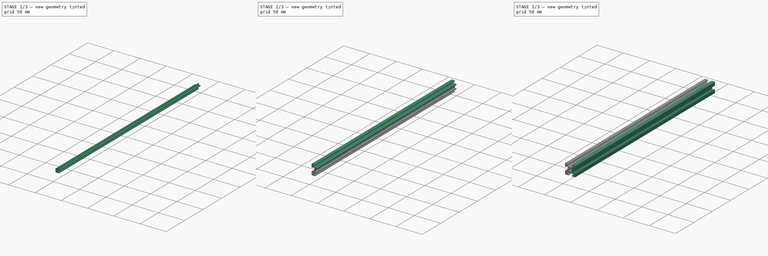
[diagram: build sequence overview — one tinted view per stage of 3, left to right]
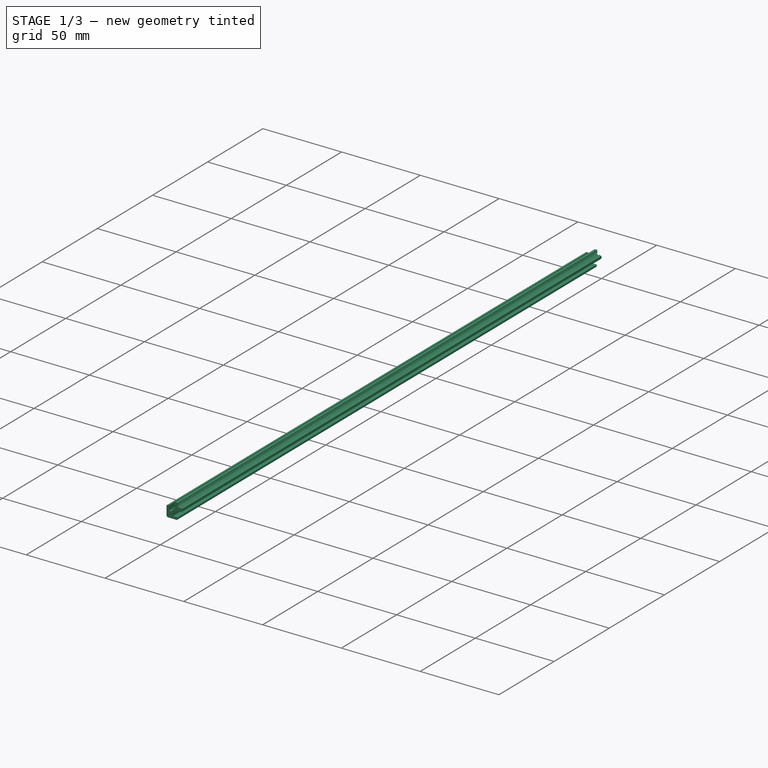
[diagram: stage 1 of 3 — iso view after this stage's code; geometry added in this stage tinted green]
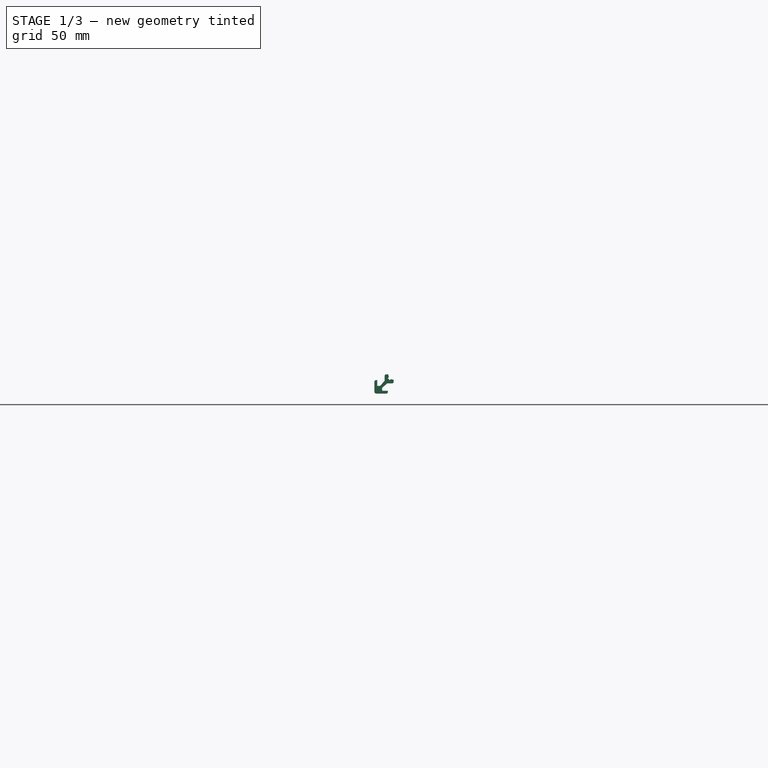
[diagram: stage 1 of 3 — front view after this stage's code; geometry added in this stage tinted green]
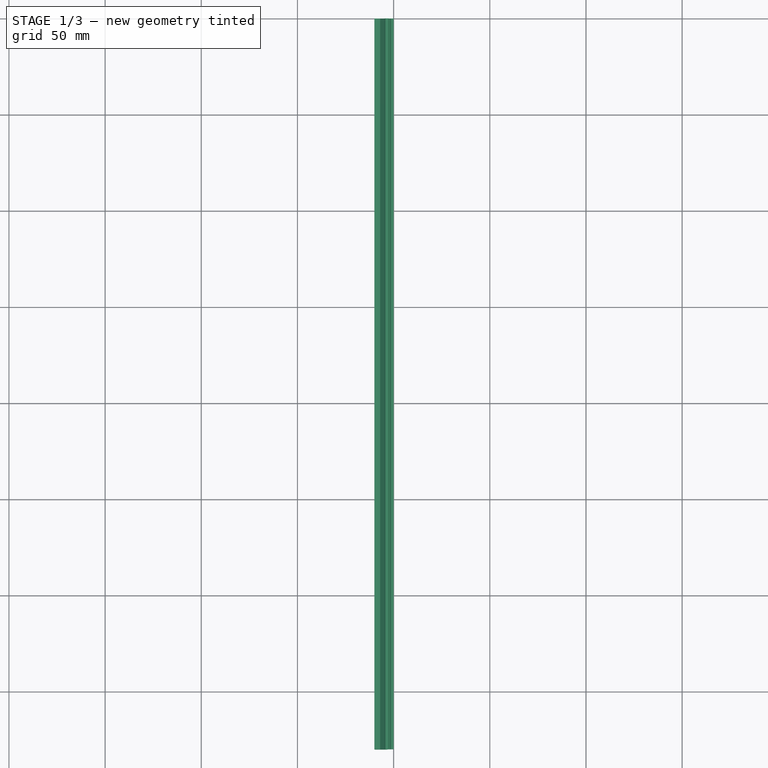
[diagram: stage 1 of 3 — top view after this stage's code; geometry added in this stage tinted green]
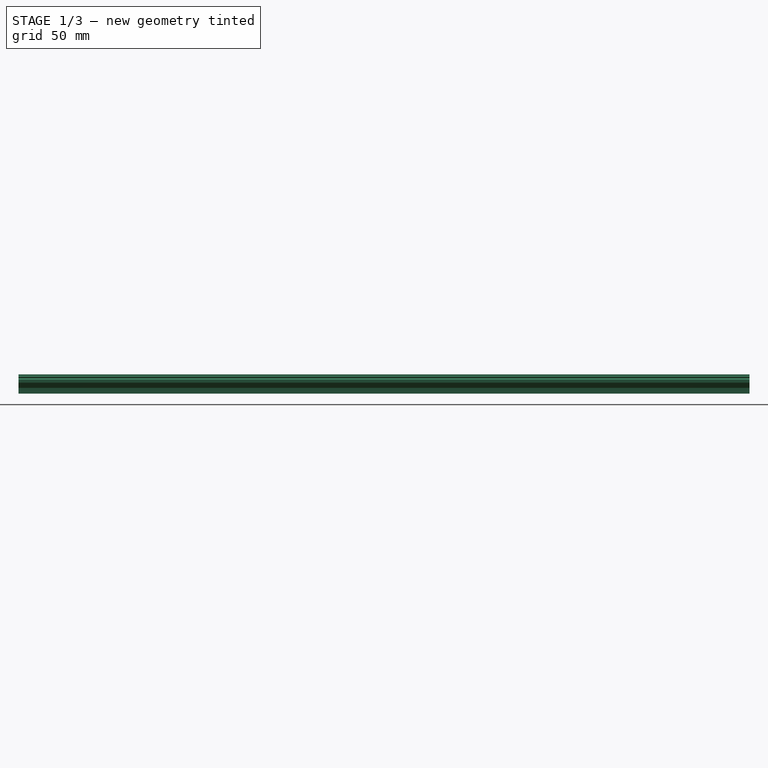
[diagram: stage 1 of 3 — right view after this stage's code; geometry added in this stage tinted green]
FCSTD DOCUMENT  (FreeCAD 0.20R)
Label: Profile-20x20-B-Type_Slot6_A
License: All rights reserved
LicenseURL: http://en.wikipedia.org/wiki/All_rights_reserved
objects: Part::Mirroring×2, Part::MultiFuse×2, Sketcher::SketchObject×1, PartDesign::Pad×1, PartDesign::Body×1
note: 8 computed .brp shape members not serialized (recipe doc carries the construction recipe); baked Part::Feature solids carry a one-line shape summary decoded from their .brp

FEATURE [Sketcher::SketchObject] Sketch
  FullyConstrained = true
  MapMode = 5
  Placement = pos=(0,0,0) rot=(1,0,0;1.5708rad)
  Support = -> [XZ_Plane]
  sketch-geometry (28):
    g0: LineSegment StartX=-10 StartY=3.4 StartZ=0 EndX=-10 EndY=9 EndZ=0
    g1: LineSegment StartX=-9 StartY=10 StartZ=0 EndX=-3.4 EndY=10 EndZ=0
    g2: ArcOfCircle CenterX=-9 CenterY=9 CenterZ=0 NormalX=0 NormalY=0 NormalZ=1 AngleXU=0 Radius=1 StartAngle=1.5708 EndAngle=3.14159
    g3: LineSegment StartX=0 StartY=0 StartZ=0 EndX=-9 EndY=9 EndZ=0
    g4: ArcOfCircle CenterX=0 CenterY=0 CenterZ=0 NormalX=0 NormalY=0 NormalZ=1 AngleXU=0 Radius=2.75 StartAngle=1.5708 EndAngle=2.07997
    g5: LineSegment StartX=-2.40116 StartY=1.3405 StartZ=0 EndX=-3.0052 EndY=1.94454 EndZ=0
    g6: LineSegment StartX=-3.0052 StartY=1.94454 StartZ=0 EndX=-2.47487 EndY=2.47487 EndZ=0
    g7: LineSegment StartX=-1.94454 StartY=3.0052 StartZ=0 EndX=-1.3405 EndY=2.40116 EndZ=0
    g8: LineSegment StartX=-2.47487 StartY=2.47487 StartZ=0 EndX=-1.94454 EndY=3.0052 EndZ=0
    g9: ArcOfCircle CenterX=0 CenterY=0 CenterZ=0 NormalX=0 NormalY=0 NormalZ=1 AngleXU=0 Radius=2.75 StartAngle=2.63242 EndAngle=3.14159
    g10: LineSegment StartX=-3.4 StartY=10 StartZ=0 EndX=-3.4 EndY=9.6 EndZ=0
    g11: LineSegment StartX=-3.4 StartY=9.6 StartZ=0 EndX=-3 EndY=9.6 EndZ=0
    g12: LineSegment StartX=-3 StartY=9.6 StartZ=0 EndX=-3 EndY=8.5 EndZ=0
    g13: LineSegment StartX=-10 StartY=3.4 StartZ=0 EndX=-9.6 EndY=3.4 EndZ=0
    g14: LineSegment StartX=-9.6 StartY=3.4 StartZ=0 EndX=-9.6 EndY=3 EndZ=0
    g15: LineSegment StartX=-9.6 StartY=3 StartZ=0 EndX=-8.5 EndY=3 EndZ=0
    g16: LineSegment StartX=-3 StartY=8.5 StartZ=0 EndX=-6 EndY=8.5 EndZ=0
    g17: LineSegment StartX=-8.5 StartY=3 StartZ=0 EndX=-8.5 EndY=6 EndZ=0
    g18: LineSegment StartX=-8.5 StartY=6 StartZ=0 EndX=-7 EndY=6 EndZ=0
    g19: LineSegment StartX=-6 StartY=8.5 StartZ=0 EndX=-6 EndY=7 EndZ=0
    g20: LineSegment StartX=-0.65 StartY=4.7 StartZ=0 EndX=0 EndY=4.3 EndZ=0
    g21: LineSegment StartX=2e-16 StartY=2.75 StartZ=0 EndX=0 EndY=4.3 EndZ=0
    g22: LineSegment StartX=-2.75 StartY=3e-16 StartZ=0 EndX=-4.3 EndY=3e-16 EndZ=0
    g23: LineSegment StartX=-4.3 StartY=3e-16 StartZ=0 EndX=-4.7 EndY=0.65 EndZ=0
    g24: LineSegment StartX=-0.65 StartY=4.7 StartZ=0 EndX=-3.35 EndY=4.7 EndZ=0
    g25: LineSegment StartX=-4.7 StartY=0.65 StartZ=0 EndX=-4.7 EndY=3.35 EndZ=0
    g26: LineSegment StartX=-4.7 StartY=3.35 StartZ=0 EndX=-7 EndY=6 EndZ=0
    g27: LineSegment StartX=-3.35 StartY=4.7 StartZ=0 EndX=-6 EndY=7 EndZ=0
  constraints (84):
    c: Vertical(g0)
    c: Horizontal(g1)
    c: Tangent(g0,g2) = 1.5708
    c: Tangent(g1,g2) = 1.5708
    c: Radius(g2) = 1
    c: Coincident(g3,g-1)
    c: Coincident(g3,g2)
    c: Coincident(g4,g3)
    c: PointOnObject(g4,g-2)
    c: PointOnObject(g9,g-1)
    c: Radius(g4) = 2.75
    c: Coincident(g6,g5)
    c: Perpendicular(g6,g3)
    c: Parallel(g5,g3)
    c: Parallel(g3,g7)
    c: Coincident(g8,g6)
    c: Coincident(g7,g8)
    c: Perpendicular(g3,g8)
    c: Equal(g6,g8)
    c: PointOnObject(g6,g3)
    c: Equal(g5,g7)
    c: Distance(g6,g4) = 3.5
    c: Distance(g8) = 0.75
    c: PointOnObject(g5,g4)
    c: Equal(g4,g9)
    c: PointOnObject(g4,g7)
    c: Coincident(g4,g9)
    c: PointOnObject(g9,g5)
    c: Vertical(g10)
    c: Coincident(g10,g11)
    c: Horizontal(g11)
    c: Coincident(g11,g12)
    c: Vertical(g12)
    c: DistanceY(g10,g10) = 0.4
    c: DistanceX(g11,g11) = 0.4
    c: DistanceY(g12,g12) = 1.1
    c: Coincident(g1,g10)
    c: Horizontal(g13)
    c: Coincident(g13,g14)
    c: Vertical(g14)
    c: Coincident(g14,g15)
    c: Horizontal(g15)
    c: DistanceX(g13,g13) = 0.4
    c: DistanceY(g14,g14) = -0.4
    c: DistanceX(g15,g15) = 1.1
    c: DistanceX(g11,g4) = 3
    c: DistanceY(g4,g14) = 3
    c: Coincident(g0,g13)
    c: Coincident(g16,g12)
    c: Horizontal(g16)
    c: Coincident(g17,g15)
    c: Vertical(g17)
    c: DistanceX(g16,g16) = 3
    c: DistanceY(g17,g17) = 3
    c: Coincident(g18,g17)
    c: Horizontal(g18)
    c: Coincident(g19,g16)
    c: Vertical(g19)
    c: DistanceY(g19,g19) = 1.5
    c: DistanceX(g18,g18) = 1.5
    c: Angle(g-2,g3) = 0.785398
    c: DistanceX(g0,g4) = 10
    c: PointOnObject(g20,g-2)
    c: DistanceY(g4,g20) = 4.3
    c: Coincident(g21,g4)
    c: Coincident(g21,g20)
    c: DistanceX(g20,g20) = 0.65
    c: DistanceY(g4,g20) = 4.7
    c: Coincident(g22,g9)
    c: Horizontal(g22)
    c: Coincident(g23,g22)
    c: DistanceX(g22,g4) = 4.3
    c: DistanceX(g23,g4) = 4.7
    c: DistanceY(g22,g23) = 0.65
    c: Coincident(g24,g20)
    c: Horizontal(g24)
    c: Coincident(g25,g23)
    c: Vertical(g25)
    c: DistanceX(g24,g24) = 2.7
    c: DistanceY(g25,g25) = 2.7
    c: Coincident(g26,g25)
    c: Coincident(g26,g18)
    c: Coincident(g27,g24)
    c: Coincident(g27,g19)
FEATURE [PartDesign::Pad] Pad  label="SetLength"
  Direction = (0,-1,2e-16)
  Length = 380
  Length2 = 10
  Placement = pos=(0,0,0) rot=(1,0,0;1.5708rad)
  Profile = -> Sketch
  ReferenceAxis = -> Sketch [N_Axis]
  Type = 0
FEATURE [PartDesign::Body] Body
  Group = -> [Sketch,Pad]
  Origin = -> Origin
  Tip = -> Pad
FEATURE [Part::Mirroring] Part__Mirroring  label="LeftDown"
  Base = (0,0,0)
  Normal = (0,0,1)
  Source = -> Pad
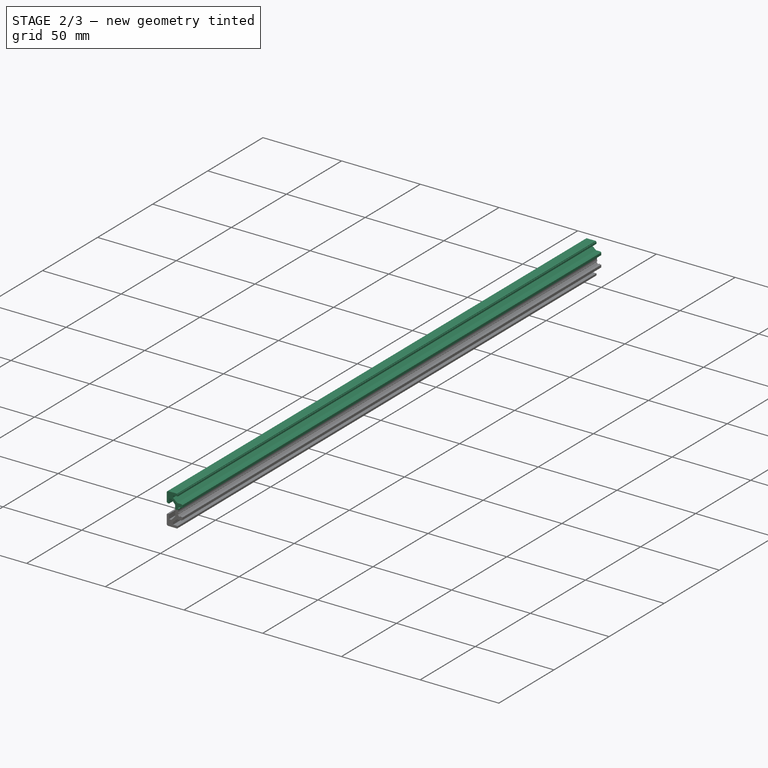
[diagram: stage 2 of 3 — iso view after this stage's code; geometry added in this stage tinted green]
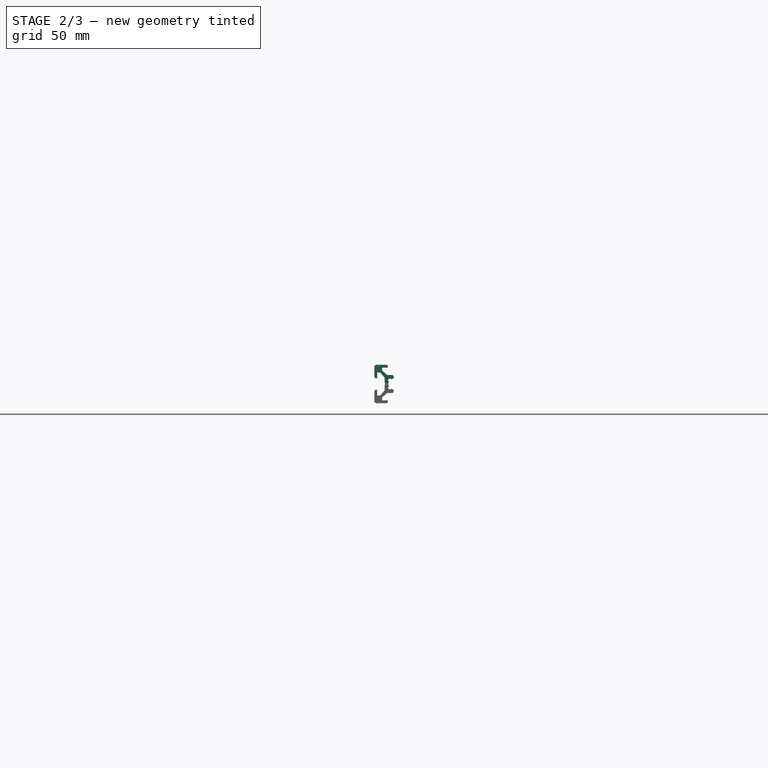
[diagram: stage 2 of 3 — front view after this stage's code; geometry added in this stage tinted green]
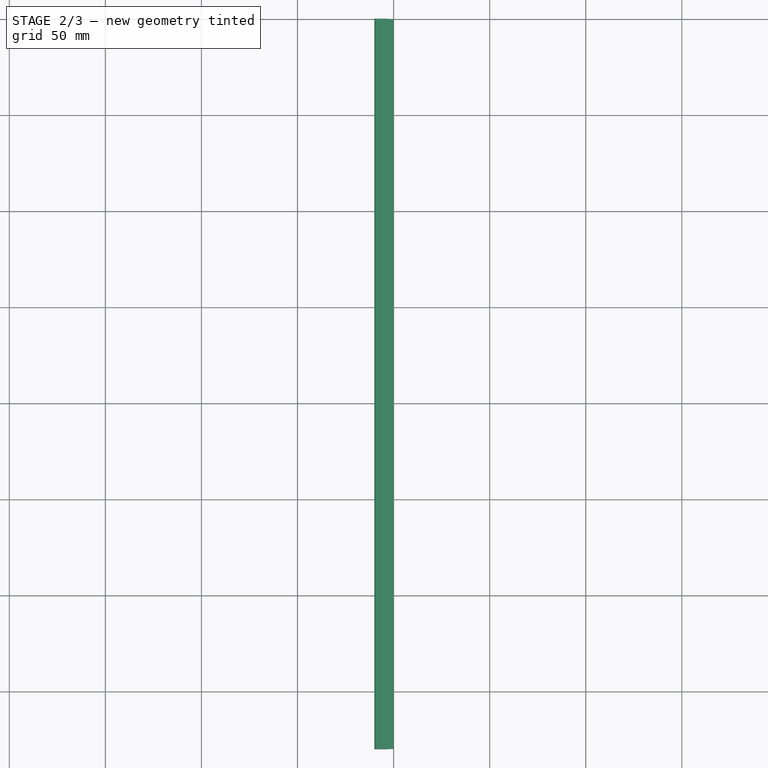
[diagram: stage 2 of 3 — top view after this stage's code; geometry added in this stage tinted green]
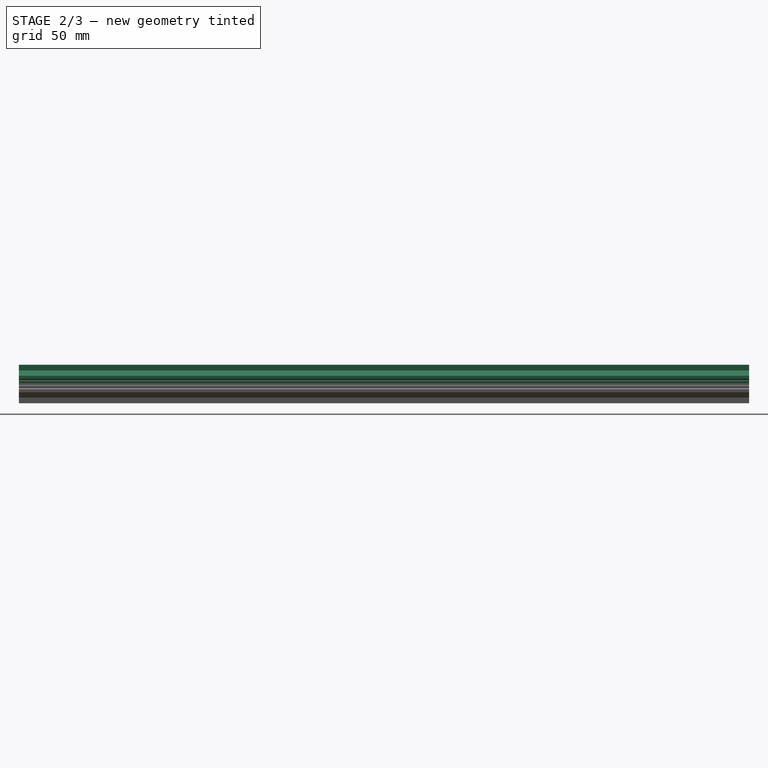
[diagram: stage 2 of 3 — right view after this stage's code; geometry added in this stage tinted green]
FEATURE [Part::MultiFuse] Fusion  label="full-left"
  Shapes = -> [Pad,Part__Mirroring]
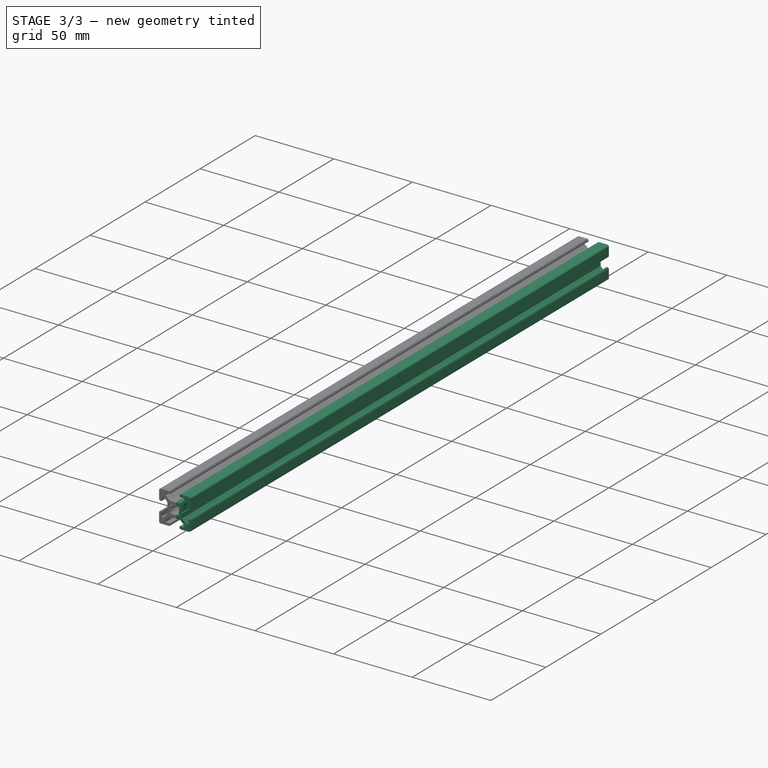
[diagram: stage 3 of 3 — iso view after this stage's code; geometry added in this stage tinted green]
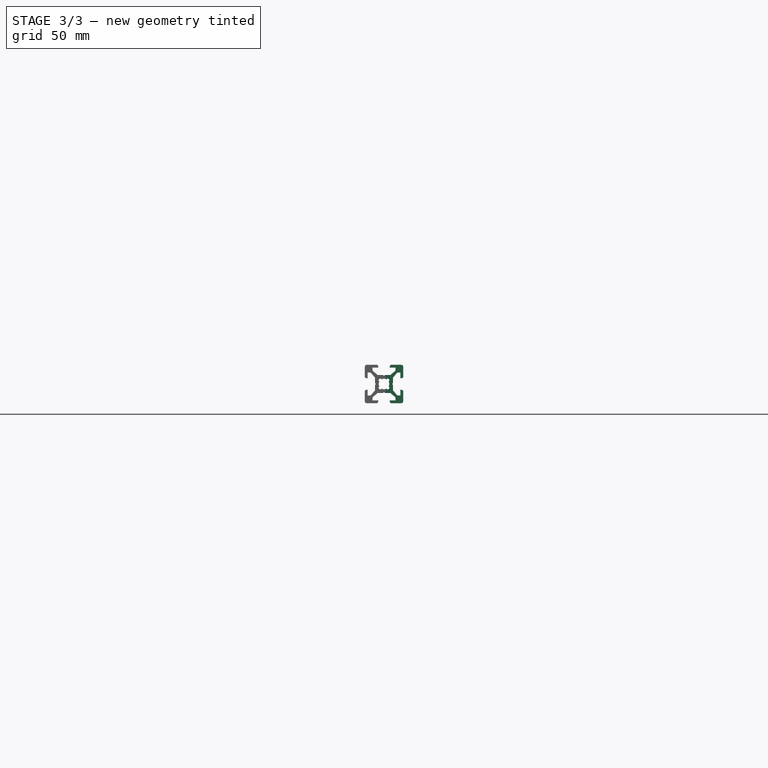
[diagram: stage 3 of 3 — front view after this stage's code; geometry added in this stage tinted green]
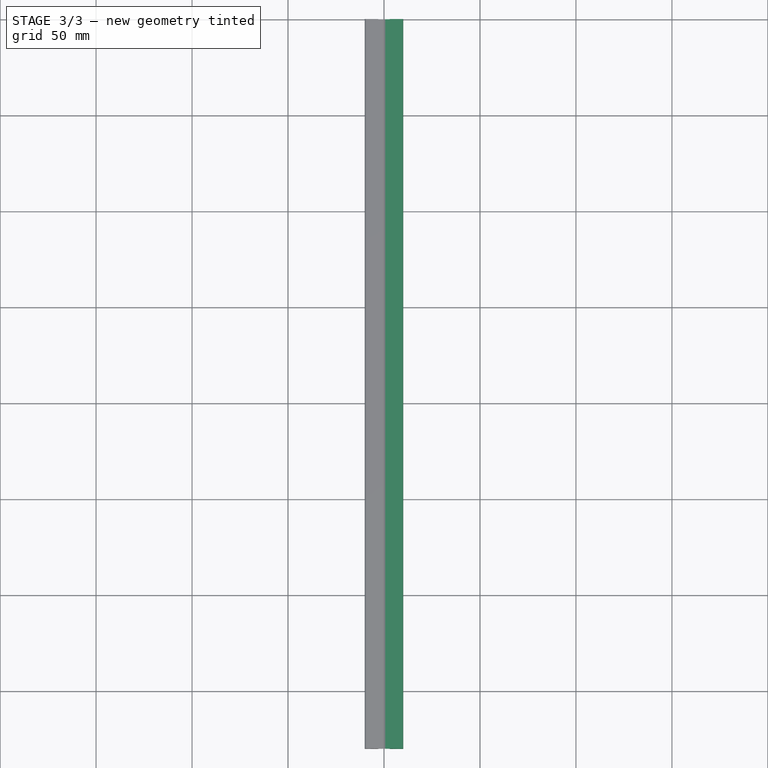
[diagram: stage 3 of 3 — top view after this stage's code; geometry added in this stage tinted green]
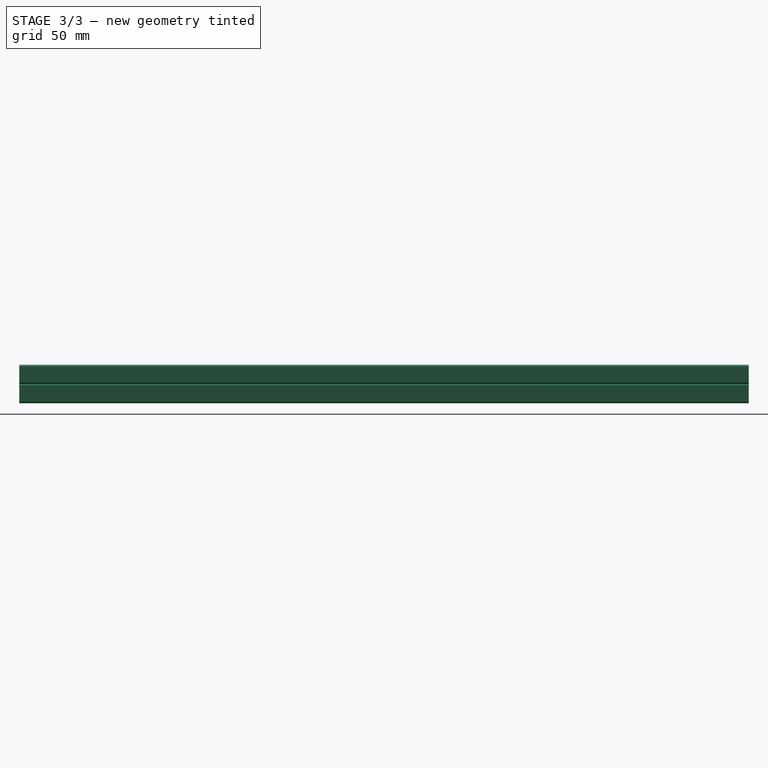
[diagram: stage 3 of 3 — right view after this stage's code; geometry added in this stage tinted green]
FEATURE [Part::Mirroring] Part__Mirroring001  label="full-left (Mirror #2)"
  Base = (0,0,0)
  Normal = (1,0,0)
  Source = -> Fusion
FEATURE [Part::MultiFuse] Fusion001  label="Profile-20x20-B-Type_Slot6_A"
  Shapes = -> [Part__Mirroring001,Fusion]
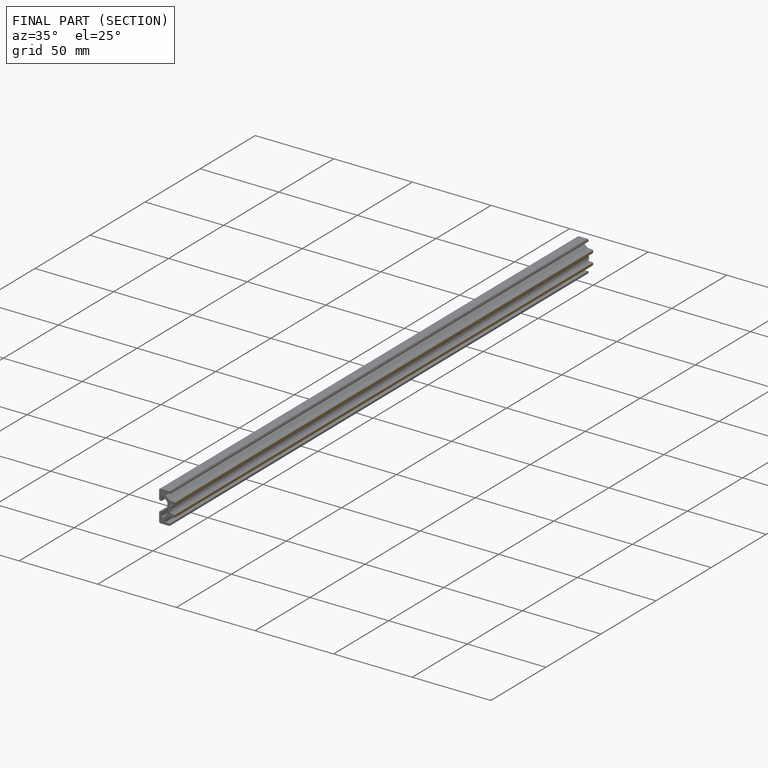
[diagram: finished part — half-section view (interior)]
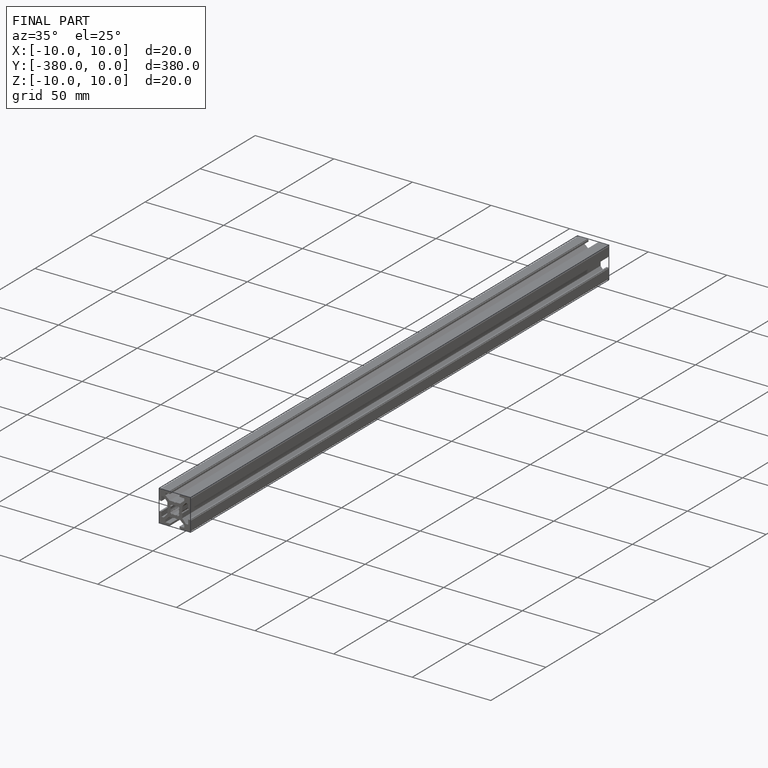
[diagram: finished part — iso view with bounding-box wireframe]
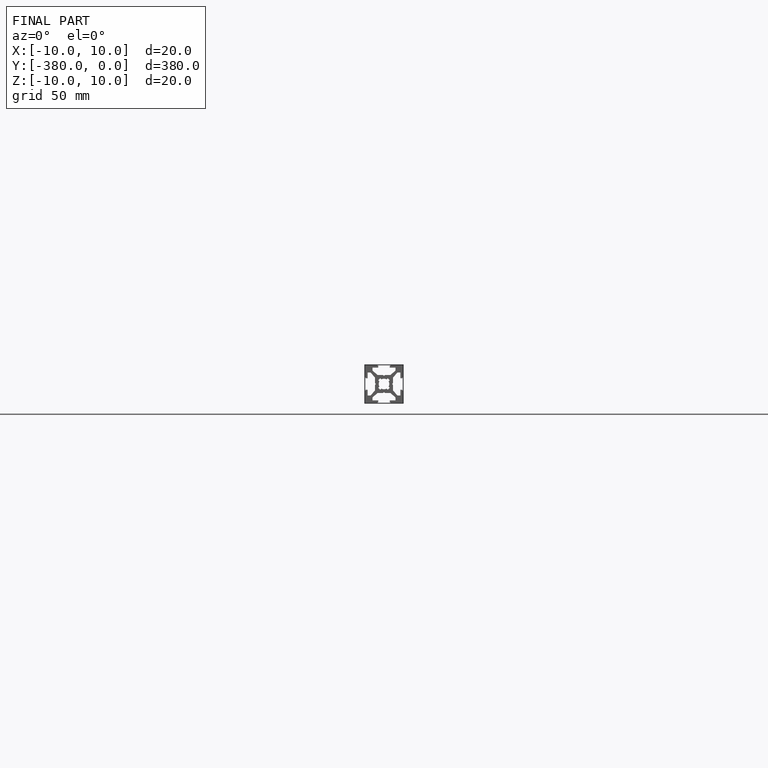
[diagram: finished part — front view with bounding-box wireframe]
